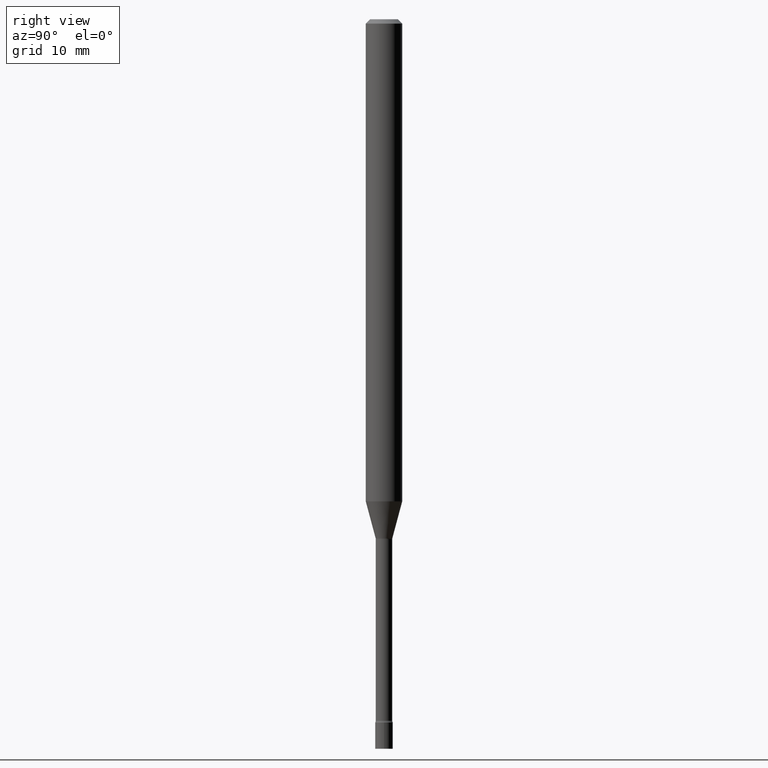
[diagram: clean part render]
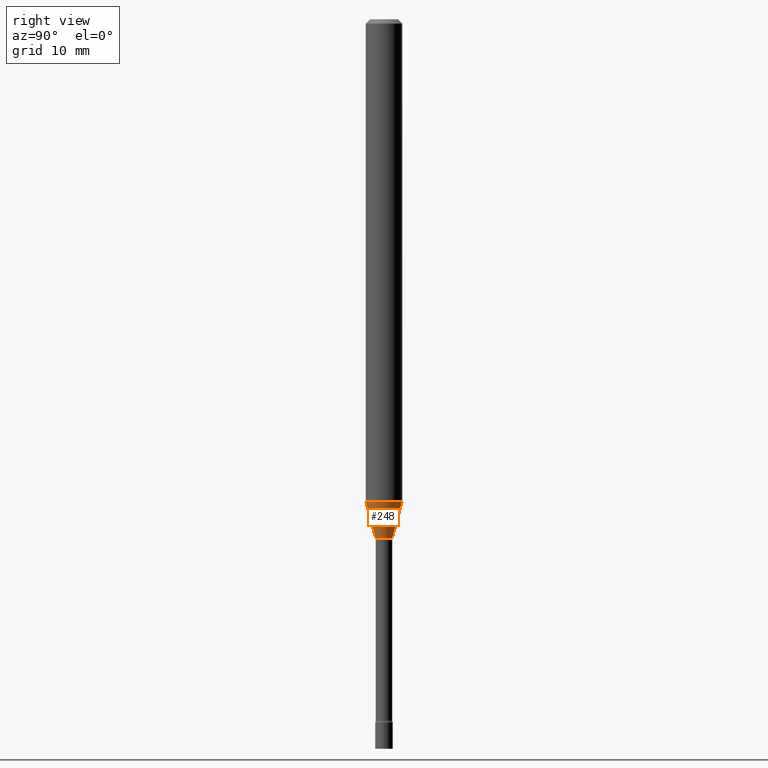
[diagram: same view with one face highlighted and labeled with its STEP entity id]
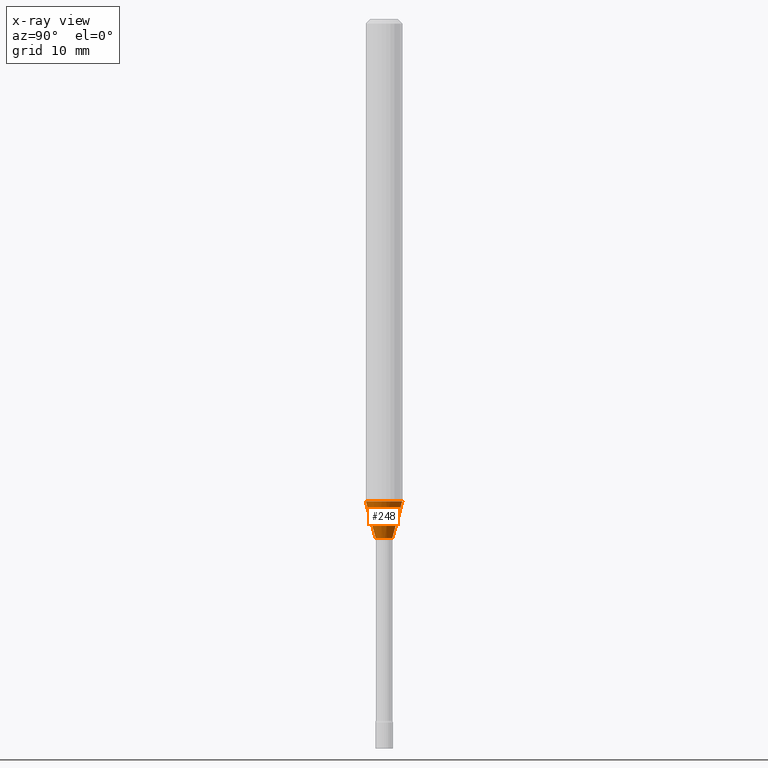
[diagram: x-ray of the same camera — body ghosted, the highlighted face saturated]
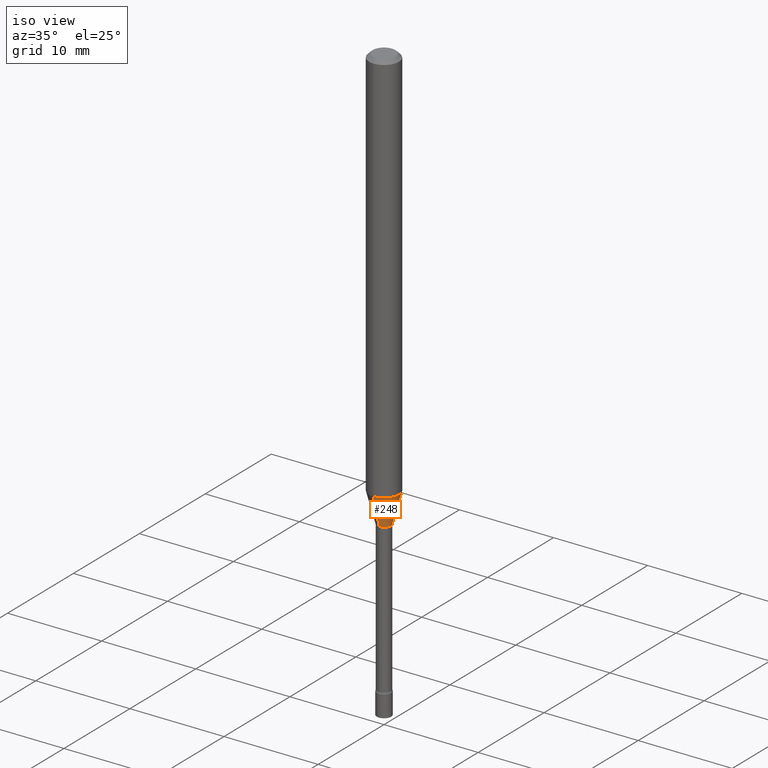
[diagram: same view with one face highlighted and labeled with its STEP entity id]
A machine part, right view. The second image highlights one B-rep face of the part: STEP entity #248.
The next image is the same camera in x-ray: the body ghosted, the highlighted face saturated — about 0% of this face is hidden behind the body in this view.
A second angle (iso view) of the same face is appended — the face is thin or edge-on in the first view.
In plain terms, the highlighted conical surface has half-angle 15 deg.
Its self-contained STEP definition (entity closure, byte-faithful):
#5 = CARTESIAN_POINT ( 'NONE',  ( 4.440892098501027495E-16, 0.06249999999999421296, -1.651990657300388188 ) ) ;
#8 = VECTOR ( 'NONE', #170, 39.37007874015748854 ) ;
#45 = CIRCLE ( 'NONE', #72, 0.02871111260566398468 ) ;
#63 = CONICAL_SURFACE ( 'NONE', #231, 0.02871111260566398468, 0.2617993877991500740 ) ;
#72 = AXIS2_PLACEMENT_3D ( 'NONE', #238, #354, #387 ) ;
#91 = EDGE_CURVE ( 'NONE', #229, #405, #45, .T. ) ;
#98 = DIRECTION ( 'NONE',  ( -6.982962677686265133E-15, -1.000000000000000000, 0.000000000000000000 ) ) ;
#124 = EDGE_CURVE ( 'NONE', #405, #466, #168, .T. ) ;
#137 = DIRECTION ( 'NONE',  ( -2.445500294341348638E-29, 3.491436246011255464E-15, 1.000000000000000000 ) ) ;
#140 = VERTEX_POINT ( 'NONE', #276 ) ;
#145 = DIRECTION ( 'NONE',  ( -2.445500294341348638E-29, 3.491436246011255464E-15, 1.000000000000000000 ) ) ;
#158 = AXIS2_PLACEMENT_3D ( 'NONE', #406, #145, #293 ) ;
#168 = LINE ( 'NONE', #169, #8 ) ;
#169 = CARTESIAN_POINT ( 'NONE',  ( 2.040047249754913233E-16, 0.02871111260565777784, -1.778092501787273294 ) ) ;
#170 = DIRECTION ( 'NONE',  ( 1.839019923739598738E-15, 0.2588190451025247363, 0.9659258262890673130 ) ) ;
#181 = CIRCLE ( 'NONE', #158, 0.06250000000000000000 ) ;
#208 = FACE_OUTER_BOUND ( 'NONE', #261, .T. ) ;
#210 = CARTESIAN_POINT ( 'NONE',  ( 4.348325736486921487E-29, -6.208096609500918334E-15, -1.778092501787273294 ) ) ;
#213 = ORIENTED_EDGE ( 'NONE', *, *, #124, .T. ) ;
#223 = CARTESIAN_POINT ( 'NONE',  ( -2.004886277601557809E-16, -0.02871111260567019152, -1.778092501787273294 ) ) ;
#229 = VERTEX_POINT ( 'NONE', #395 ) ;
#231 = AXIS2_PLACEMENT_3D ( 'NONE', #210, #137, #98 ) ;
#238 = CARTESIAN_POINT ( 'NONE',  ( 4.348325736486921487E-29, -6.208096609500918334E-15, -1.778092501787273294 ) ) ;
#248 = ADVANCED_FACE ( 'NONE', ( #208 ), #63, .T. ) ;
#261 = EDGE_LOOP ( 'NONE', ( #489, #213, #445, #327 ) ) ;
#276 = CARTESIAN_POINT ( 'NONE',  ( -4.364351673553514375E-16, -0.06250000000000580092, -1.651990657300387744 ) ) ;
#293 = DIRECTION ( 'NONE',  ( -6.982962677686265922E-15, -1.000000000000000000, 4.370956789862821150E-15 ) ) ;
#321 = VECTOR ( 'NONE', #341, 39.37007874015748854 ) ;
#327 = ORIENTED_EDGE ( 'NONE', *, *, #485, .F. ) ;
#338 = LINE ( 'NONE', #223, #321 ) ;
#341 = DIRECTION ( 'NONE',  ( -1.807323732225328562E-15, -0.2588190451025179639, 0.9659258262890690894 ) ) ;
#345 = EDGE_CURVE ( 'NONE', #140, #466, #181, .T. ) ;
#354 = DIRECTION ( 'NONE',  ( -2.445500294341348638E-29, 3.491436246011255464E-15, 1.000000000000000000 ) ) ;
#387 = DIRECTION ( 'NONE',  ( -6.982962677686265133E-15, -1.000000000000000000, 0.000000000000000000 ) ) ;
#395 = CARTESIAN_POINT ( 'NONE',  ( -2.004886277601557809E-16, -0.02871111260567019152, -1.778092501787273294 ) ) ;
#405 = VERTEX_POINT ( 'NONE', #458 ) ;
#406 = CARTESIAN_POINT ( 'NONE',  ( 4.039943638677256498E-29, -5.767820058970533268E-15, -1.651990657300387966 ) ) ;
#445 = ORIENTED_EDGE ( 'NONE', *, *, #345, .F. ) ;
#458 = CARTESIAN_POINT ( 'NONE',  ( 3.240469674127972582E-16, 0.02871111260565777784, -1.778092501787273294 ) ) ;
#466 = VERTEX_POINT ( 'NONE', #5 ) ;
#485 = EDGE_CURVE ( 'NONE', #229, #140, #338, .T. ) ;
#489 = ORIENTED_EDGE ( 'NONE', *, *, #91, .T. ) ;